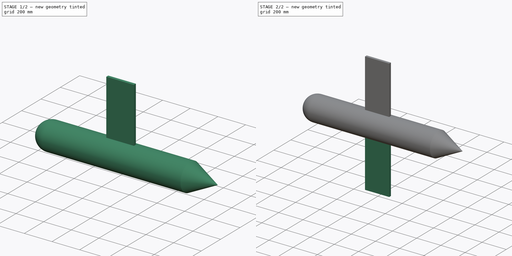
[diagram: build sequence overview — one tinted view per stage of 2, left to right]
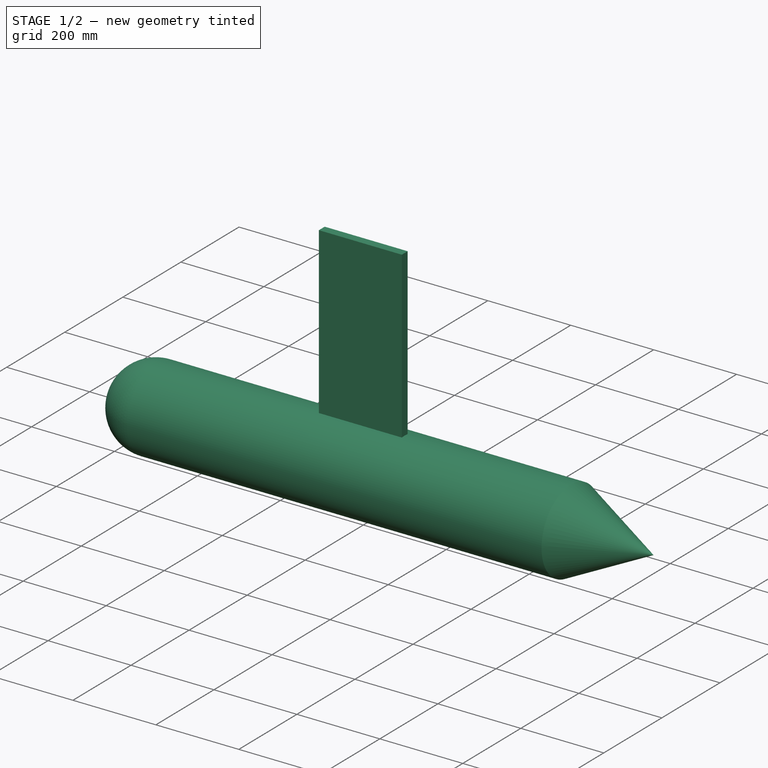
[diagram: stage 1 of 2 — iso view after this stage's code; geometry added in this stage tinted green]
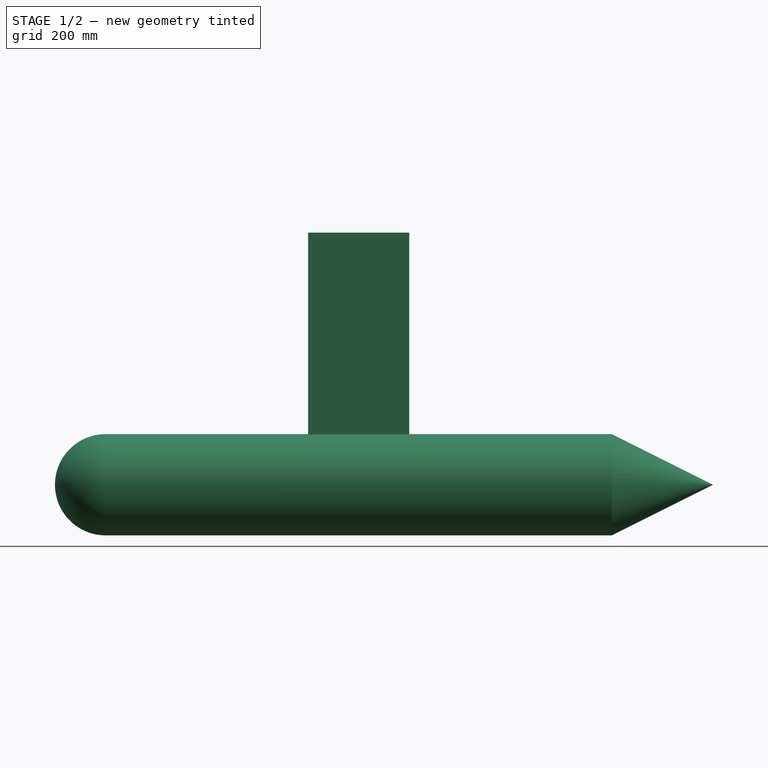
[diagram: stage 1 of 2 — front view after this stage's code; geometry added in this stage tinted green]
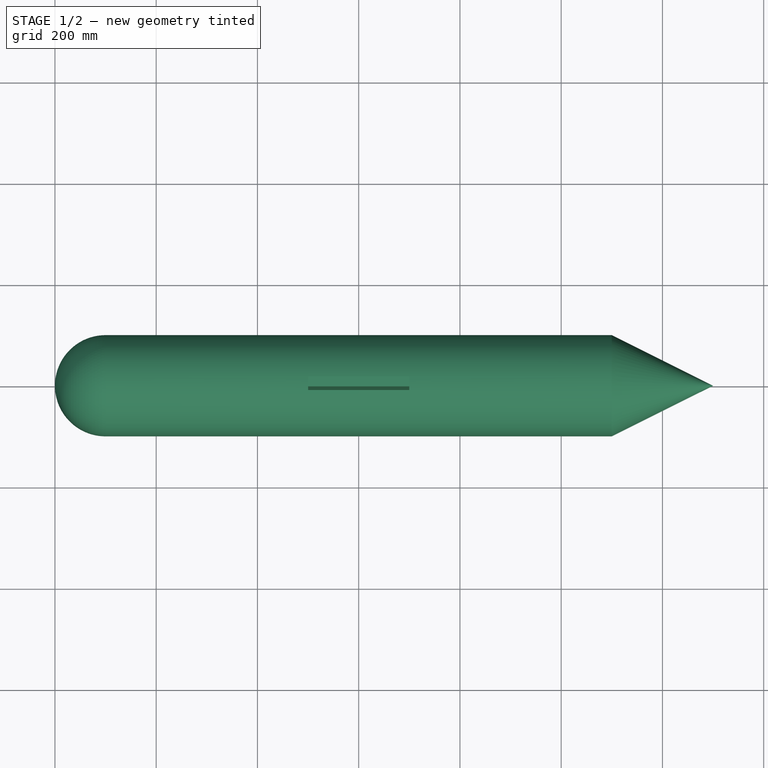
[diagram: stage 1 of 2 — top view after this stage's code; geometry added in this stage tinted green]
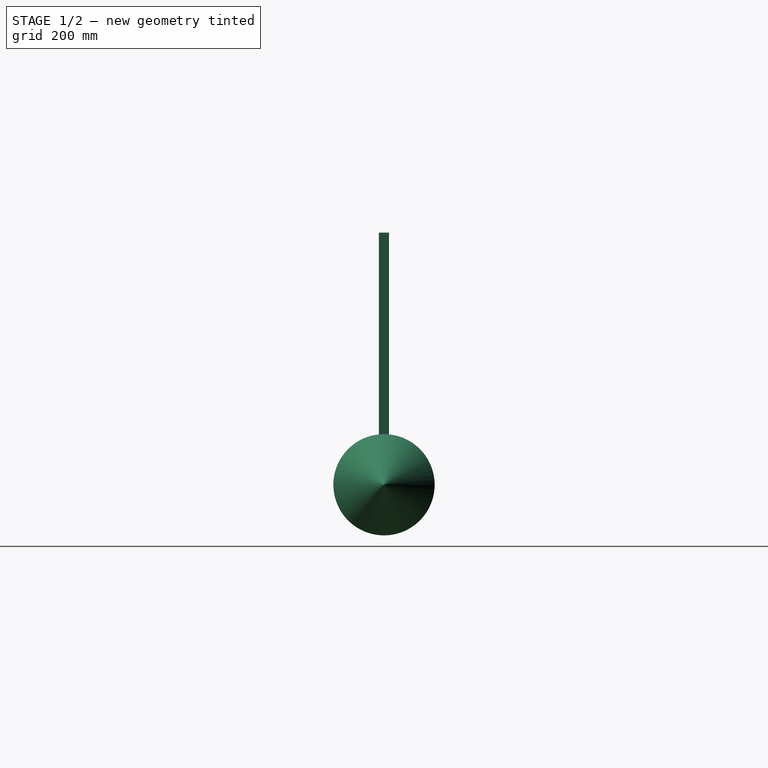
[diagram: stage 1 of 2 — right view after this stage's code; geometry added in this stage tinted green]
FCSTD DOCUMENT  (FreeCAD 0.20R)
Label: winged_design
License: All rights reserved
LicenseURL: http://en.wikipedia.org/wiki/All_rights_reserved
objects: Sketcher::SketchObject×3, PartDesign::Pad×2, PartDesign::Revolution×1, PartDesign::Body×1, Spreadsheet::Sheet×1
note: 10 computed .brp shape members not serialized (recipe doc carries the construction recipe); baked Part::Feature solids carry a one-line shape summary decoded from their .brp

FEATURE [Sketcher::SketchObject] Sketch
  FullyConstrained = true
  MapMode = 5
  Support = -> [XY_Plane]
  expr: .Constraints.myring_b = <<Spreadsheet>>.B2
  expr: .Constraints.myring_c = <<Spreadsheet>>.B3
  expr: .Constraints.radius = <<Spreadsheet>>.B1
  sketch-geometry (8):
    g0: LineSegment StartX=500 StartY=100 StartZ=0 EndX=500 EndY=0 EndZ=0
    g1: LineSegment StartX=-500 StartY=100 StartZ=0 EndX=-500 EndY=2.84e-14 EndZ=0
    g2: LineSegment StartX=-500 StartY=2.84e-14 StartZ=0 EndX=500 EndY=0 EndZ=0
    g3: LineSegment StartX=-500 StartY=2.84e-14 StartZ=0 EndX=-600 EndY=2.84e-14 EndZ=0
    g4: LineSegment StartX=500 StartY=0 StartZ=0 EndX=700 EndY=0 EndZ=0
    g5: LineSegment StartX=-500 StartY=100 StartZ=0 EndX=500 EndY=100 EndZ=0
    g6: LineSegment StartX=500 StartY=100 StartZ=0 EndX=700 EndY=0 EndZ=0
    g7: ArcOfCircle CenterX=-500 CenterY=2.84e-14 CenterZ=0 NormalX=0 NormalY=0 NormalZ=1 AngleXU=0 Radius=100 StartAngle=1.5708 EndAngle=3.14159
  constraints (21):
    c: Vertical(g0)
    c: Vertical(g1)
    c: DistanceX(g1,g0) = 1000  'myring_b'
    c: Symmetric(g1,g0,g-2)
    c: Coincident(g2,g1)
    c: Coincident(g2,g0)
    c: Coincident(g3,g1)
    c: PointOnObject(g3,g-1)
    c: Horizontal(g3)
    c: Coincident(g4,g0)
    c: PointOnObject(g4,g-1)
    c: DistanceX(g2,g4) = 200  'myring_c'
    c: Coincident(g5,g0)
    c: Coincident(g6,g5)
    c: Coincident(g6,g4)
    c: Coincident(g5,g1)
    c: Coincident(g7,g2)
    c: Coincident(g7,g5)
    c: Coincident(g3,g7)
    c: Equal(g1,g0)
    c: DistanceX(g3,g2) = 100  'radius'
FEATURE [PartDesign::Revolution] Revolution
  Angle = 360
  Axis = (1,0,0)
  Base = (0,0,0)
  Profile = -> Sketch
  ReferenceAxis = -> Sketch [H_Axis]
FEATURE [Sketcher::SketchObject] Sketch004
  AttachmentOffset = pos=(0,0,98) rot=(0,0,1;0rad)
  FullyConstrained = true
  MapMode = 5
  Placement = pos=(0,0,98) rot=(0,0,1;0rad)
  Support = -> [XY_Plane]
  expr: .AttachmentOffset.Base.z = <<Spreadsheet>>.B1 - 2mm
  expr: .Constraints.left_span = <<Spreadsheet>>.B5
  expr: .Constraints.left_thickness = <<Spreadsheet>>.B4
  sketch-geometry (4):
    g0: LineSegment StartX=-100 StartY=10 StartZ=0 EndX=100 EndY=10 EndZ=0
    g1: LineSegment StartX=100 StartY=10 StartZ=0 EndX=100 EndY=-10 EndZ=0
    g2: LineSegment StartX=-100 StartY=-10 StartZ=0 EndX=100 EndY=-10 EndZ=0
    g3: LineSegment StartX=-100 StartY=10 StartZ=0 EndX=-100 EndY=-10 EndZ=0
  constraints (10):
    c: Symmetric(g0,g0,g-2)
    c: Coincident(g1,g0)
    c: Symmetric(g0,g1,g-1)
    c: Coincident(g2,g1)
    c: Horizontal(g2)
    c: Coincident(g3,g0)
    c: Coincident(g3,g2)
    c: Vertical(g3)
    c: DistanceX(g0,g0) = 200  'left_span'
    c: DistanceY(g1,g0) = 20  'left_thickness'
FEATURE [Sketcher::SketchObject] Sketch005
  AttachmentOffset = pos=(0,0,-98) rot=(0,0,1;0rad)
  FullyConstrained = true
  MapMode = 5
  Placement = pos=(0,0,-98) rot=(0,0,1;0rad)
  Support = -> [XY_Plane]
  expr: .AttachmentOffset.Base.z = -1 * <<Spreadsheet>>.B1 + 2mm
  expr: .Constraints.right_span = <<Spreadsheet>>.B5
  expr: .Constraints.right_thickness = <<Spreadsheet>>.B4
  sketch-geometry (4):
    g0: LineSegment StartX=-100 StartY=10 StartZ=0 EndX=100 EndY=10 EndZ=0
    g1: LineSegment StartX=100 StartY=10 StartZ=0 EndX=100 EndY=-10 EndZ=0
    g2: LineSegment StartX=-100 StartY=10 StartZ=0 EndX=-100 EndY=-10 EndZ=0
    g3: LineSegment StartX=-100 StartY=-10 StartZ=0 EndX=100 EndY=-10 EndZ=0
  constraints (10):
    c: Symmetric(g0,g0,g-2)
    c: Coincident(g1,g0)
    c: Symmetric(g0,g1,g-1)
    c: Coincident(g2,g0)
    c: Vertical(g2)
    c: Coincident(g3,g2)
    c: Coincident(g3,g1)
    c: Horizontal(g3)
    c: DistanceX(g0,g0) = 200  'right_span'
    c: DistanceY(g1,g0) = 20  'right_thickness'
FEATURE [PartDesign::Pad] Pad
  BaseFeature = -> Revolution
  Direction = (0,0,1)
  Length = 400
  Length2 = 10
  Profile = -> Sketch004
  ReferenceAxis = -> Sketch004 [N_Axis]
  Type = 0
  expr: Length = <<Spreadsheet>>.B6
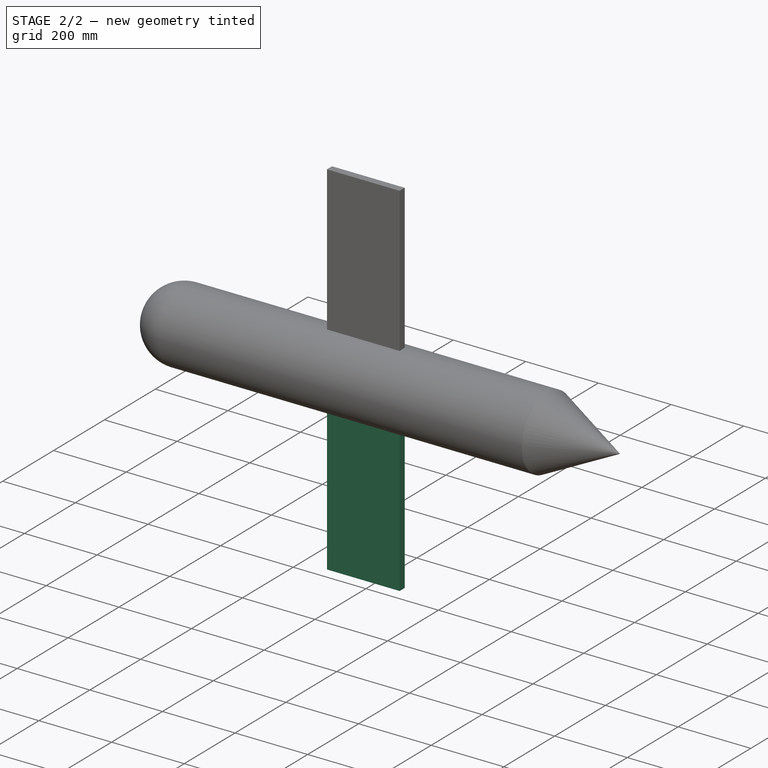
[diagram: stage 2 of 2 — iso view after this stage's code; geometry added in this stage tinted green]
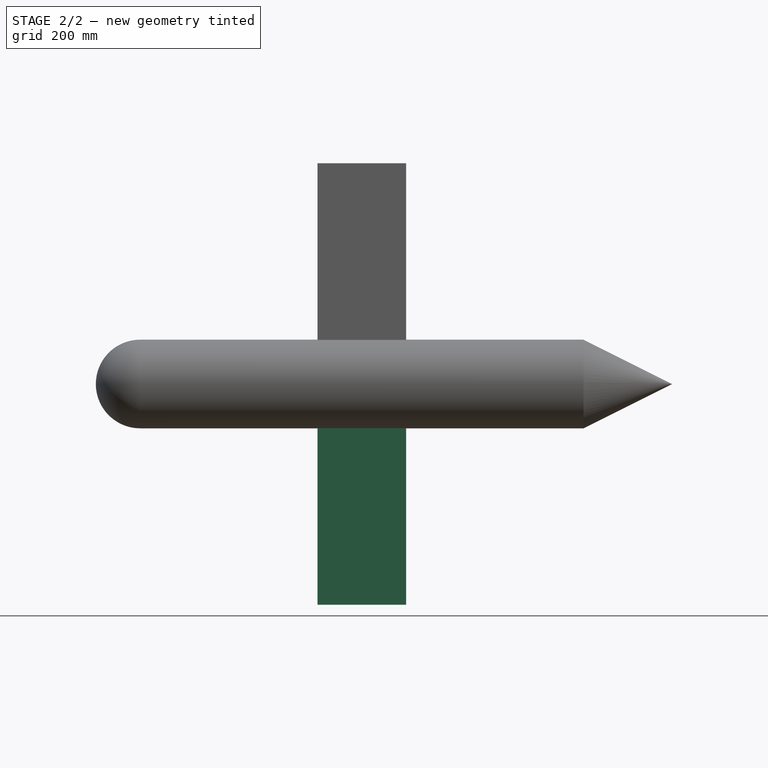
[diagram: stage 2 of 2 — front view after this stage's code; geometry added in this stage tinted green]
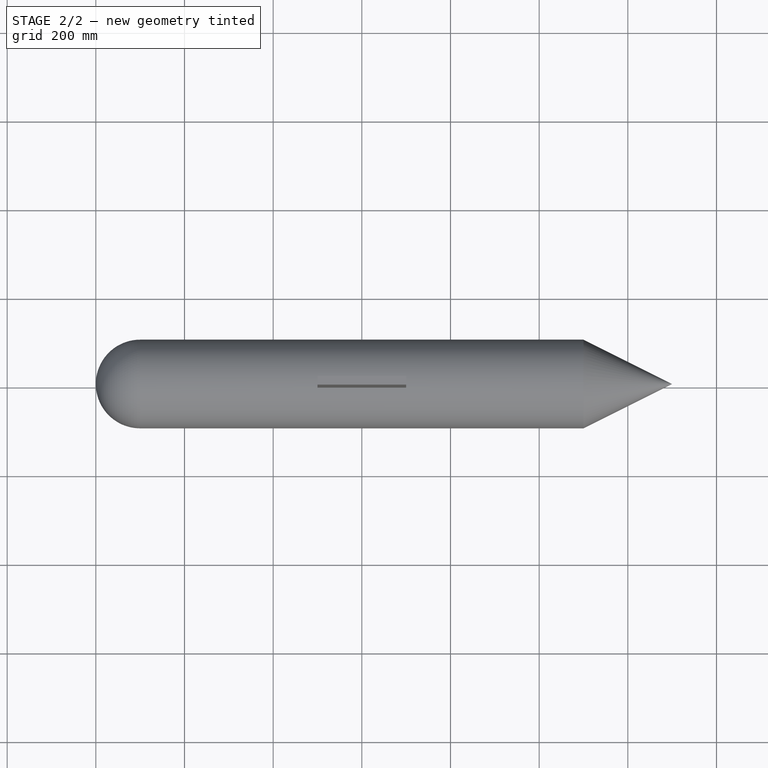
[diagram: stage 2 of 2 — top view after this stage's code; geometry added in this stage tinted green]
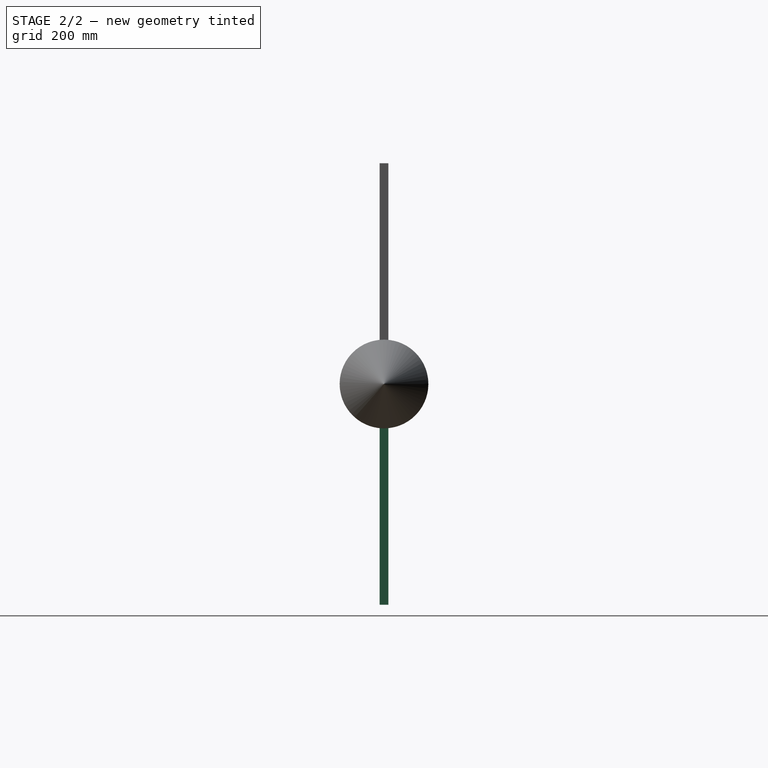
[diagram: stage 2 of 2 — right view after this stage's code; geometry added in this stage tinted green]
FEATURE [PartDesign::Pad] Pad001
  BaseFeature = -> Pad
  Direction = (0,0,1)
  Length = 400
  Length2 = 10
  Profile = -> Sketch005
  ReferenceAxis = -> Sketch005 [N_Axis]
  Reversed = true
  Type = 0
  expr: Length = <<Spreadsheet>>.B6
FEATURE [PartDesign::Body] Body
  Group = -> [Sketch,Revolution,Sketch004,Sketch005,Pad,Pad001]
  Origin = -> Origin
  Tip = -> Pad001
FEATURE [Spreadsheet::Sheet] Spreadsheet
  cells = A1=nose_radius; B1==100mm; A2=fuselage_length; B2==1000mm; A3=tail_length; B3==200mm; A4=thickness_wing; B4==20mm; A5=half_span; B5==200mm; A6=chord; B6==400mm
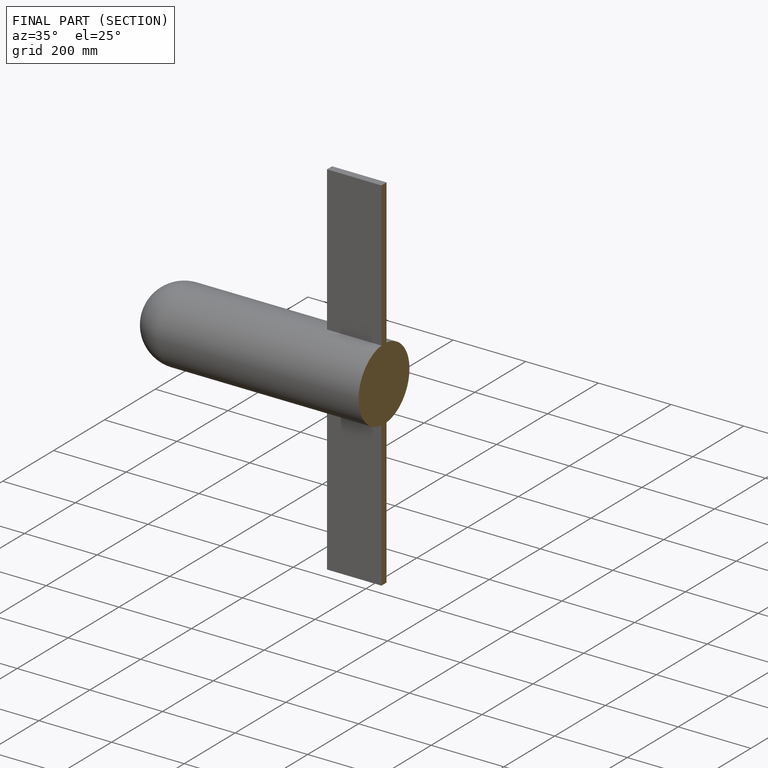
[diagram: finished part — half-section view (interior)]
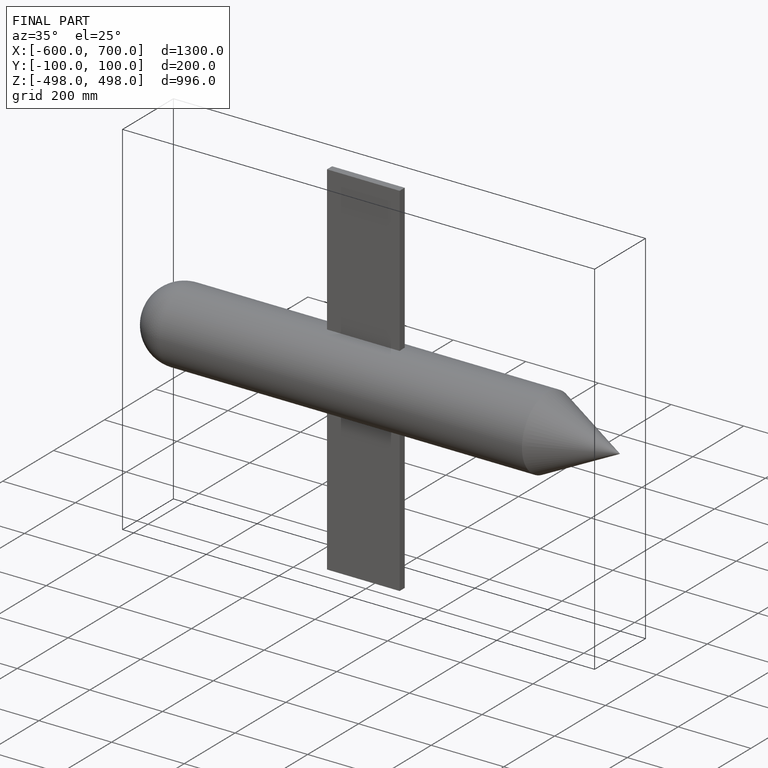
[diagram: finished part — iso view with bounding-box wireframe]
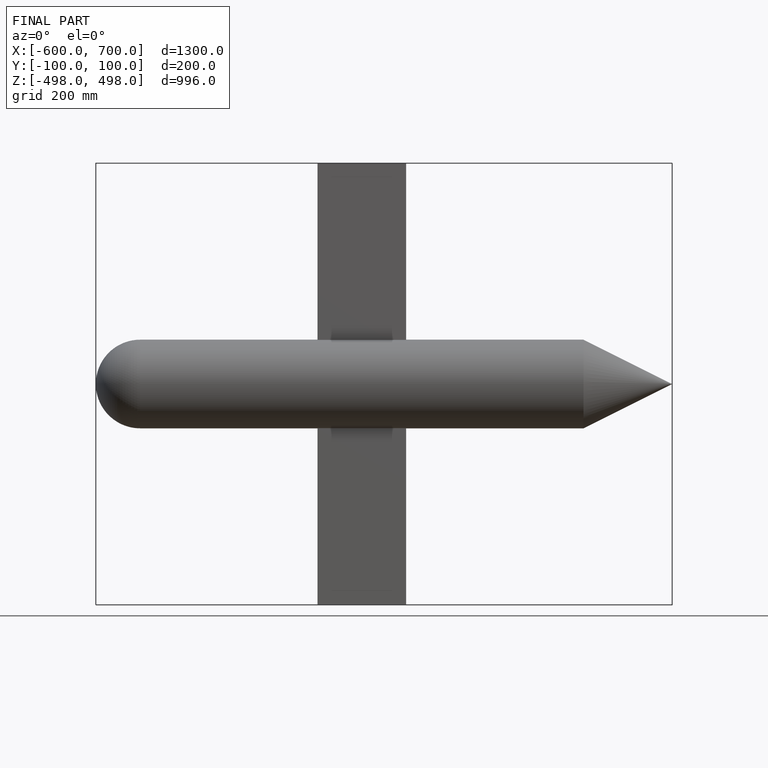
[diagram: finished part — front view with bounding-box wireframe]
